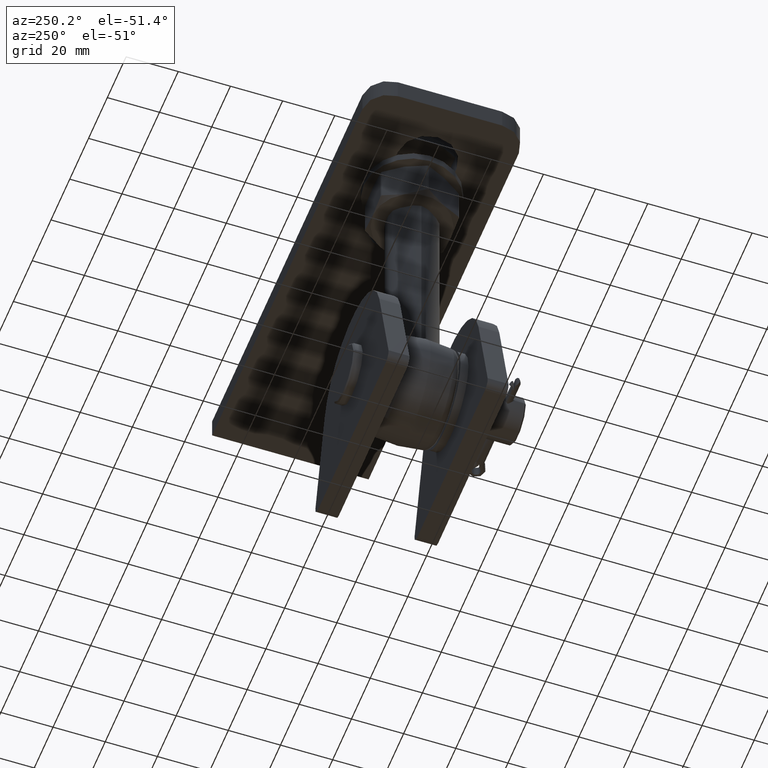
[diagram: clean part render]
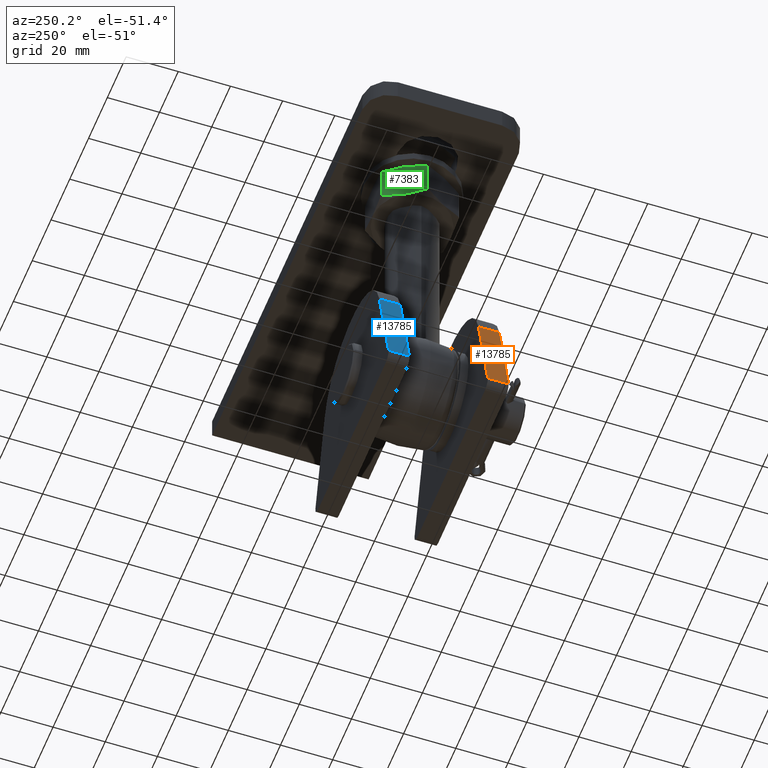
[diagram: same view with three faces highlighted in distinct colors, each labeled with its STEP entity id]
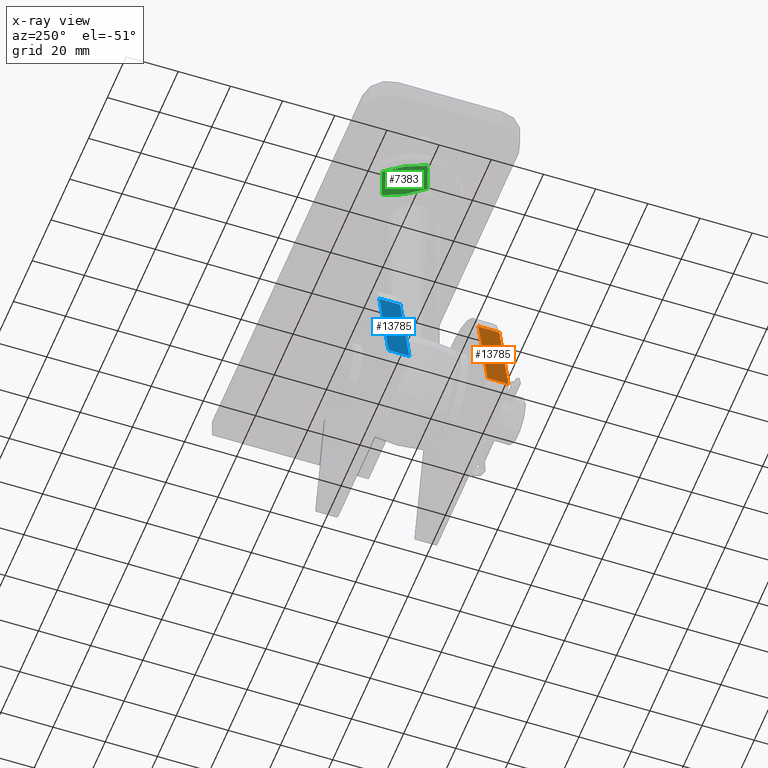
[diagram: x-ray of the same camera — body ghosted, the three highlighted faces saturated]
A machine part, auxiliary view with three faces highlighted in distinct colors.
The next image is the same camera in x-ray (body ghosted, the three faces saturated) — at least one of them is partly hidden behind the body in this view.
Their STEP definitions:

[orange] entity #13785 — the highlighted planar face has unit normal (0.9729, 0, -0.2312).
#472 = PLANE ( 'NONE',  #16524 ) ;
#649 = DIRECTION ( 'NONE',  ( 0.9729171476782937367, 0.000000000000000000, -0.2311541125602855073 ) ) ;
#989 = DIRECTION ( 'NONE',  ( -0.000000000000000000, -1.000000000000000000, -0.000000000000000000 ) ) ;
#994 = VECTOR ( 'NONE', #7798, 1000.000000000000000 ) ;
#2729 = LINE ( 'NONE', #9891, #9162 ) ;
#3913 = CARTESIAN_POINT ( 'NONE',  ( -38.91875144303487843, -4.000000000000000000, 3.693462337680856855 ) ) ;
#4417 = VERTEX_POINT ( 'NONE', #11745 ) ;
#5971 = EDGE_CURVE ( 'NONE', #6361, #12442, #13527, .T. ) ;
#6355 = ORIENTED_EDGE ( 'NONE', *, *, #7879, .T. ) ;
#6361 = VERTEX_POINT ( 'NONE', #16316 ) ;
#6454 = CARTESIAN_POINT ( 'NONE',  ( -29.10478518798784009, 4.000000000000000000, 45.00000000000000000 ) ) ;
#7033 = VERTEX_POINT ( 'NONE', #10808 ) ;
#7393 = CARTESIAN_POINT ( 'NONE',  ( -38.91875144303487843, 4.000000000000000000, 3.693462337680856855 ) ) ;
#7798 = DIRECTION ( 'NONE',  ( 0.2311541125602855073, 0.000000000000000000, 0.9729171476782937367 ) ) ;
#7879 = EDGE_CURVE ( 'NONE', #7033, #4417, #7967, .T. ) ;
#7967 = LINE ( 'NONE', #3913, #994 ) ;
#8082 = EDGE_CURVE ( 'NONE', #12442, #4417, #11044, .T. ) ;
#9162 = VECTOR ( 'NONE', #13852, 1000.000000000000000 ) ;
#9385 = EDGE_CURVE ( 'NONE', #6361, #7033, #2729, .T. ) ;
#9891 = CARTESIAN_POINT ( 'NONE',  ( -38.91875144303487843, 4.000000000000000000, 3.693462337680856855 ) ) ;
#10576 = VECTOR ( 'NONE', #12461, 1000.000000000000000 ) ;
#10808 = CARTESIAN_POINT ( 'NONE',  ( -38.91875144303487843, -4.000000000000000000, 3.693462337680856855 ) ) ;
#11044 = LINE ( 'NONE', #6454, #12518 ) ;
#11100 = CARTESIAN_POINT ( 'NONE',  ( -38.91875144303487843, 4.000000000000000000, 3.693462337680856855 ) ) ;
#11745 = CARTESIAN_POINT ( 'NONE',  ( -29.10478518798784009, -4.000000000000000000, 45.00000000000000000 ) ) ;
#11936 = EDGE_LOOP ( 'NONE', ( #6355, #12363, #14782, #17577 ) ) ;
#12363 = ORIENTED_EDGE ( 'NONE', *, *, #8082, .F. ) ;
#12442 = VERTEX_POINT ( 'NONE', #17419 ) ;
#12461 = DIRECTION ( 'NONE',  ( 0.2311541125602855073, 0.000000000000000000, 0.9729171476782937367 ) ) ;
#12518 = VECTOR ( 'NONE', #989, 1000.000000000000000 ) ;
#12747 = FACE_OUTER_BOUND ( 'NONE', #11936, .T. ) ;
#13527 = LINE ( 'NONE', #11100, #10576 ) ;
#13785 = ADVANCED_FACE ( 'NONE', ( #12747 ), #472, .F. ) ;
#13852 = DIRECTION ( 'NONE',  ( -0.000000000000000000, -1.000000000000000000, -0.000000000000000000 ) ) ;
#14117 = DIRECTION ( 'NONE',  ( -0.2311541125602855073, 0.000000000000000000, -0.9729171476782937367 ) ) ;
#14782 = ORIENTED_EDGE ( 'NONE', *, *, #5971, .F. ) ;
#16316 = CARTESIAN_POINT ( 'NONE',  ( -38.91875144303487843, 4.000000000000000000, 3.693462337680856855 ) ) ;
#16524 = AXIS2_PLACEMENT_3D ( 'NONE', #7393, #649, #14117 ) ;
#17419 = CARTESIAN_POINT ( 'NONE',  ( -29.10478518798784009, 4.000000000000000000, 45.00000000000000000 ) ) ;
#17577 = ORIENTED_EDGE ( 'NONE', *, *, #9385, .T. ) ;

[blue] entity #13785 — the highlighted planar face has unit normal (0.9729, 0, -0.2312).
#472 = PLANE ( 'NONE',  #16524 ) ;
#649 = DIRECTION ( 'NONE',  ( 0.9729171476782937367, 0.000000000000000000, -0.2311541125602855073 ) ) ;
#989 = DIRECTION ( 'NONE',  ( -0.000000000000000000, -1.000000000000000000, -0.000000000000000000 ) ) ;
#994 = VECTOR ( 'NONE', #7798, 1000.000000000000000 ) ;
#2729 = LINE ( 'NONE', #9891, #9162 ) ;
#3913 = CARTESIAN_POINT ( 'NONE',  ( -38.91875144303487843, -4.000000000000000000, 3.693462337680856855 ) ) ;
#4417 = VERTEX_POINT ( 'NONE', #11745 ) ;
#5971 = EDGE_CURVE ( 'NONE', #6361, #12442, #13527, .T. ) ;
#6355 = ORIENTED_EDGE ( 'NONE', *, *, #7879, .T. ) ;
#6361 = VERTEX_POINT ( 'NONE', #16316 ) ;
#6454 = CARTESIAN_POINT ( 'NONE',  ( -29.10478518798784009, 4.000000000000000000, 45.00000000000000000 ) ) ;
#7033 = VERTEX_POINT ( 'NONE', #10808 ) ;
#7393 = CARTESIAN_POINT ( 'NONE',  ( -38.91875144303487843, 4.000000000000000000, 3.693462337680856855 ) ) ;
#7798 = DIRECTION ( 'NONE',  ( 0.2311541125602855073, 0.000000000000000000, 0.9729171476782937367 ) ) ;
#7879 = EDGE_CURVE ( 'NONE', #7033, #4417, #7967, .T. ) ;
#7967 = LINE ( 'NONE', #3913, #994 ) ;
#8082 = EDGE_CURVE ( 'NONE', #12442, #4417, #11044, .T. ) ;
#9162 = VECTOR ( 'NONE', #13852, 1000.000000000000000 ) ;
#9385 = EDGE_CURVE ( 'NONE', #6361, #7033, #2729, .T. ) ;
#9891 = CARTESIAN_POINT ( 'NONE',  ( -38.91875144303487843, 4.000000000000000000, 3.693462337680856855 ) ) ;
#10576 = VECTOR ( 'NONE', #12461, 1000.000000000000000 ) ;
#10808 = CARTESIAN_POINT ( 'NONE',  ( -38.91875144303487843, -4.000000000000000000, 3.693462337680856855 ) ) ;
#11044 = LINE ( 'NONE', #6454, #12518 ) ;
#11100 = CARTESIAN_POINT ( 'NONE',  ( -38.91875144303487843, 4.000000000000000000, 3.693462337680856855 ) ) ;
#11745 = CARTESIAN_POINT ( 'NONE',  ( -29.10478518798784009, -4.000000000000000000, 45.00000000000000000 ) ) ;
#11936 = EDGE_LOOP ( 'NONE', ( #6355, #12363, #14782, #17577 ) ) ;
#12363 = ORIENTED_EDGE ( 'NONE', *, *, #8082, .F. ) ;
#12442 = VERTEX_POINT ( 'NONE', #17419 ) ;
#12461 = DIRECTION ( 'NONE',  ( 0.2311541125602855073, 0.000000000000000000, 0.9729171476782937367 ) ) ;
#12518 = VECTOR ( 'NONE', #989, 1000.000000000000000 ) ;
#12747 = FACE_OUTER_BOUND ( 'NONE', #11936, .T. ) ;
#13527 = LINE ( 'NONE', #11100, #10576 ) ;
#13785 = ADVANCED_FACE ( 'NONE', ( #12747 ), #472, .F. ) ;
#13852 = DIRECTION ( 'NONE',  ( -0.000000000000000000, -1.000000000000000000, -0.000000000000000000 ) ) ;
#14117 = DIRECTION ( 'NONE',  ( -0.2311541125602855073, 0.000000000000000000, -0.9729171476782937367 ) ) ;
#14782 = ORIENTED_EDGE ( 'NONE', *, *, #5971, .F. ) ;
#16316 = CARTESIAN_POINT ( 'NONE',  ( -38.91875144303487843, 4.000000000000000000, 3.693462337680856855 ) ) ;
#16524 = AXIS2_PLACEMENT_3D ( 'NONE', #7393, #649, #14117 ) ;
#17419 = CARTESIAN_POINT ( 'NONE',  ( -29.10478518798784009, 4.000000000000000000, 45.00000000000000000 ) ) ;
#17577 = ORIENTED_EDGE ( 'NONE', *, *, #9385, .T. ) ;

[green] entity #7383 — the highlighted planar face has unit normal (0.866, -0.5, -0).
#259 = CARTESIAN_POINT ( 'NONE',  ( -12.99038105676658006, -7.999999999999979572, 7.499999999999946709 ) ) ;
#287 = CARTESIAN_POINT ( 'NONE',  ( -17.17617050839135828, 6.742537006636517560, 0.2499999999999986400 ) ) ;
#733 = ORIENTED_EDGE ( 'NONE', *, *, #806, .T. ) ;
#806 = EDGE_CURVE ( 'NONE', #10347, #15558, #14675, .T. ) ;
#1064 = VECTOR ( 'NONE', #1412, 1000.000000000000000 ) ;
#1412 = DIRECTION ( 'NONE',  ( 0.000000000000000000, -1.000000000000000000, -1.029231301106134717E-41 ) ) ;
#1543 = CARTESIAN_POINT ( 'NONE',  ( -17.17617050839160342, -6.742537006636406538, 0.2499999999996449784 ) ) ;
#1616 = CARTESIAN_POINT ( 'NONE',  ( -12.63540191847491378, -7.999999999999979572, 8.114841903148224844 ) ) ;
#1662 = CARTESIAN_POINT ( 'NONE',  ( -11.57308690788089400, -7.855961152673858194, 9.954825475140152591 ) ) ;
#1921 = VERTEX_POINT ( 'NONE', #12045 ) ;
#2733 = ORIENTED_EDGE ( 'NONE', *, *, #4101, .T. ) ;
#2853 = VERTEX_POINT ( 'NONE', #11989 ) ;
#3832 = LINE ( 'NONE', #16378, #1064 ) ;
#4101 = EDGE_CURVE ( 'NONE', #15558, #2853, #7169, .T. ) ;
#4238 = CARTESIAN_POINT ( 'NONE',  ( -13.34536019505832449, 8.000000000000005329, 6.885158096851716536 ) ) ;
#4342 = CARTESIAN_POINT ( 'NONE',  ( -10.17691673415274956, -7.443203950645576050, 12.37306315204958373 ) ) ;
#4862 = EDGE_CURVE ( 'NONE', #7938, #10972, #12167, .T. ) ;
#5189 = CARTESIAN_POINT ( 'NONE',  ( -11.57356463835068183, 7.880936946784327546, 9.953998021694150822 ) ) ;
#5598 = CARTESIAN_POINT ( 'NONE',  ( -15.80384537938048517, 7.443203950645603584, 2.626936847950358977 ) ) ;
#5803 = CARTESIAN_POINT ( 'NONE',  ( -8.804591605141792954, 8.000000000000007105, 14.74999999999989342 ) ) ;
#6483 = CARTESIAN_POINT ( 'NONE',  ( -12.99038105676658539, 8.000000000000007105, 7.499999999999946709 ) ) ;
#6535 = DIRECTION ( 'NONE',  ( 0.8660254037844370423, 0.000000000000000000, -0.5000000000000028866 ) ) ;
#6934 = CARTESIAN_POINT ( 'NONE',  ( -14.40719747518255645, -7.880936946784296460, 5.046001978305785229 ) ) ;
#7131 = CARTESIAN_POINT ( 'NONE',  ( -9.487921627489644294, -7.127071147645142268, 13.56643768295641905 ) ) ;
#7169 = B_SPLINE_CURVE_WITH_KNOTS ( 'NONE', 3,
 ( #16556, #4238, #8284, #8353, #8405, #5598, #13817, #287 ),
 .UNSPECIFIED., .F., .F.,
 ( 4, 2, 2, 4 ),
 ( 0.008762996616073619530, 0.01087123203367017059, 0.01297946745126671991, 0.01719593828645982203 ),
 .UNSPECIFIED. ) ;
#7383 = ADVANCED_FACE ( 'NONE', ( #10094 ), #7445, .F. ) ;
#7445 = PLANE ( 'NONE',  #15769 ) ;
#7938 = VERTEX_POINT ( 'NONE', #14690 ) ;
#8137 = CARTESIAN_POINT ( 'NONE',  ( -12.99038105676658006, -7.999999999999979572, 7.499999999999946709 ) ) ;
#8284 = CARTESIAN_POINT ( 'NONE',  ( -13.70198089623497850, 7.970464509671024267, 6.267472923382903183 ) ) ;
#8304 = CARTESIAN_POINT ( 'NONE',  ( -12.99038105676658539, 8.000000000000007105, 7.499999999999946709 ) ) ;
#8353 = CARTESIAN_POINT ( 'NONE',  ( -14.40767520565235138, 7.855961152673883952, 5.045174524859777243 ) ) ;
#8405 = CARTESIAN_POINT ( 'NONE',  ( -14.75823572515148996, 7.771100192624770031, 4.437985893959522699 ) ) ;
#8509 = LINE ( 'NONE', #5803, #9391 ) ;
#8882 = CARTESIAN_POINT ( 'NONE',  ( -17.32050807568876749, 8.000000000000007105, -1.743893177348695732E-15 ) ) ;
#9360 = EDGE_CURVE ( 'NONE', #1921, #10347, #8509, .T. ) ;
#9391 = VECTOR ( 'NONE', #9939, 1000.000000000000000 ) ;
#9442 = EDGE_CURVE ( 'NONE', #10972, #1921, #15585, .T. ) ;
#9457 = ORIENTED_EDGE ( 'NONE', *, *, #9360, .T. ) ;
#9660 = CARTESIAN_POINT ( 'NONE',  ( -13.70306496151928499, -7.999999999999979572, 6.265595267231762300 ) ) ;
#9939 = DIRECTION ( 'NONE',  ( -0.000000000000000000, 1.000000000000000000, 1.029231301106134717E-41 ) ) ;
#10094 = FACE_OUTER_BOUND ( 'NONE', #13483, .T. ) ;
#10347 = VERTEX_POINT ( 'NONE', #13547 ) ;
#10650 = EDGE_CURVE ( 'NONE', #2853, #7938, #3832, .T. ) ;
#10682 = CARTESIAN_POINT ( 'NONE',  ( -12.99038105676658006, -7.999999999999979572, 7.499999999999946709 ) ) ;
#10839 = ORIENTED_EDGE ( 'NONE', *, *, #10650, .T. ) ;
#10939 = CARTESIAN_POINT ( 'NONE',  ( -15.80120340677629720, -7.444278057055680797, 2.631512878733032856 ) ) ;
#10972 = VERTEX_POINT ( 'NONE', #10682 ) ;
#11869 = CARTESIAN_POINT ( 'NONE',  ( -8.804591605141588673, 6.742537006636379004, 14.75000000000024514 ) ) ;
#11989 = CARTESIAN_POINT ( 'NONE',  ( -17.17617050839135828, 6.742537006636517560, 0.2499999999999986400 ) ) ;
#12045 = CARTESIAN_POINT ( 'NONE',  ( -8.804591605141787625, -6.742537006636517560, 14.74999999999989519 ) ) ;
#12167 = B_SPLINE_CURVE_WITH_KNOTS ( 'NONE', 3,
 ( #1543, #16284, #10939, #6934, #9660, #8137 ),
 .UNSPECIFIED., .F., .F.,
 ( 4, 2, 4 ),
 ( 0.0002976797144595330603, 0.004530338165266582610, 0.008762996616073633407 ),
 .UNSPECIFIED. ) ;
#12592 = CARTESIAN_POINT ( 'NONE',  ( -11.22252638838175010, -7.771100192624744274, 10.56201410604041335 ) ) ;
#13483 = EDGE_LOOP ( 'NONE', ( #2733, #10839, #13708, #14564, #9457, #733 ) ) ;
#13547 = CARTESIAN_POINT ( 'NONE',  ( -8.804591605141588673, 6.742537006636379004, 14.75000000000024514 ) ) ;
#13708 = ORIENTED_EDGE ( 'NONE', *, *, #4862, .T. ) ;
#13817 = CARTESIAN_POINT ( 'NONE',  ( -16.49284048604359398, 7.127071147645168914, 1.433562317043519885 ) ) ;
#13916 = CARTESIAN_POINT ( 'NONE',  ( -8.804591605141787625, -6.742537006636517560, 14.74999999999989519 ) ) ;
#14531 = CARTESIAN_POINT ( 'NONE',  ( -9.489589927465942765, 7.128009959459899569, 13.56354810263521671 ) ) ;
#14564 = ORIENTED_EDGE ( 'NONE', *, *, #9442, .T. ) ;
#14675 = B_SPLINE_CURVE_WITH_KNOTS ( 'NONE', 3,
 ( #11869, #14531, #14769, #5189, #17315, #6483 ),
 .UNSPECIFIED., .F., .F.,
 ( 4, 2, 4 ),
 ( 0.0002976797144595310545, 0.004530338165266574804, 0.008762996616073619530 ),
 .UNSPECIFIED. ) ;
#14690 = CARTESIAN_POINT ( 'NONE',  ( -17.17617050839160342, -6.742537006636406538, 0.2499999999996449784 ) ) ;
#14769 = CARTESIAN_POINT ( 'NONE',  ( -10.17955870675694996, 7.444278057055710995, 12.36848712126690408 ) ) ;
#15558 = VERTEX_POINT ( 'NONE', #8304 ) ;
#15585 = B_SPLINE_CURVE_WITH_KNOTS ( 'NONE', 3,
 ( #259, #1616, #16707, #1662, #12592, #4342, #7131, #13916 ),
 .UNSPECIFIED., .F., .F.,
 ( 4, 2, 2, 4 ),
 ( 0.008762996616073633407, 0.01087123203367018620, 0.01297946745126673899, 0.01719593828645984632 ),
 .UNSPECIFIED. ) ;
#15769 = AXIS2_PLACEMENT_3D ( 'NONE', #8882, #6535, #15897 ) ;
#15897 = DIRECTION ( 'NONE',  ( -0.5000000000000028866, 0.000000000000000000, -0.8660254037844370423 ) ) ;
#16284 = CARTESIAN_POINT ( 'NONE',  ( -16.49117218606729907, -7.128009959459867595, 1.436451897364718011 ) ) ;
#16378 = CARTESIAN_POINT ( 'NONE',  ( -17.17617050839135828, 8.000000000000007105, 0.2499999999999971967 ) ) ;
#16556 = CARTESIAN_POINT ( 'NONE',  ( -12.99038105676658539, 8.000000000000007105, 7.499999999999946709 ) ) ;
#16707 = CARTESIAN_POINT ( 'NONE',  ( -12.27878121729826333, -7.970464509670994957, 8.732527076617026651 ) ) ;
#17315 = CARTESIAN_POINT ( 'NONE',  ( -12.27769715201395151, 8.000000000000005329, 8.734404732768174640 ) ) ;